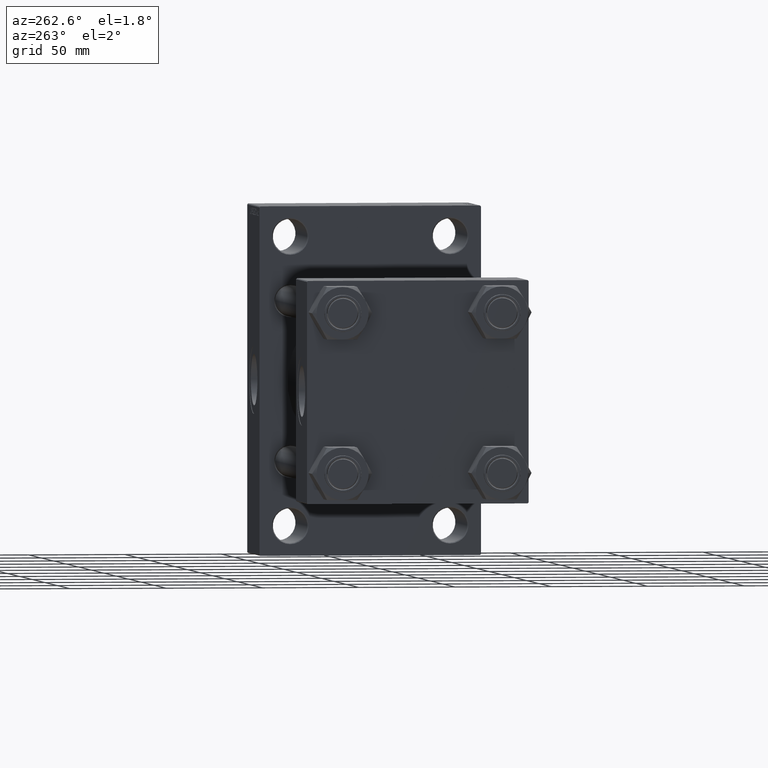
[diagram: clean part render]
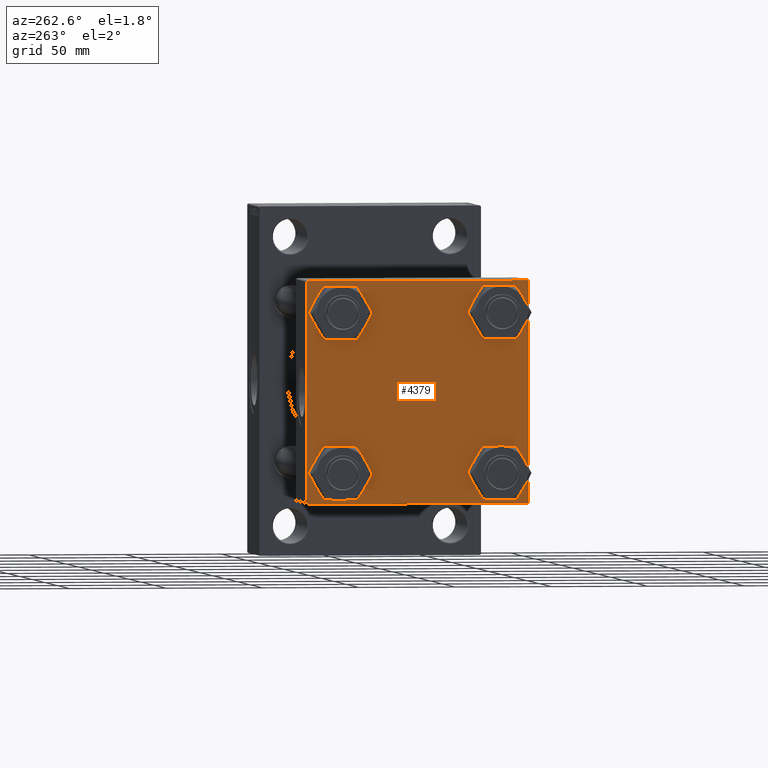
[diagram: same view with one face highlighted and labeled with its STEP entity id]
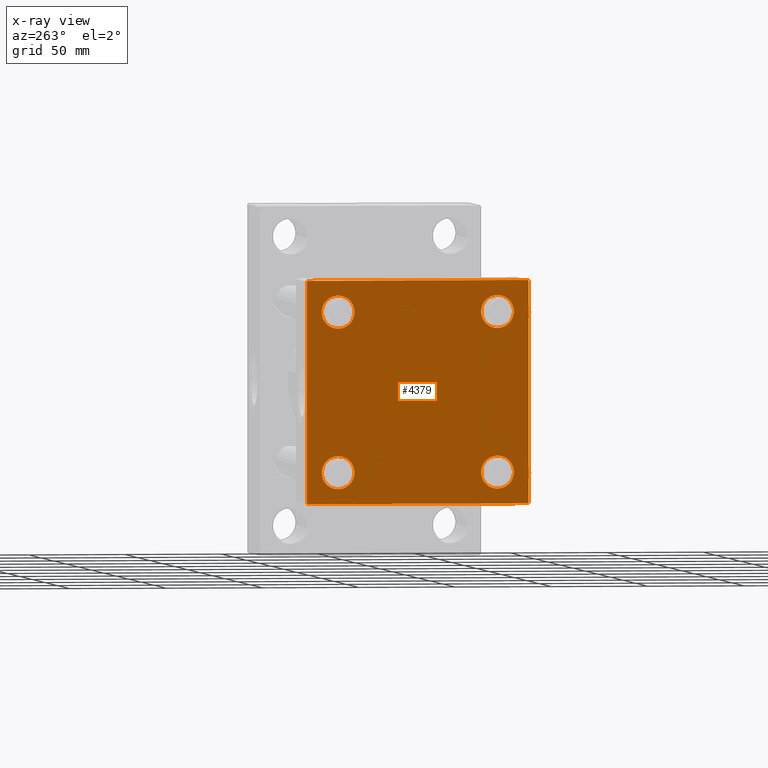
[diagram: x-ray of the same camera — body ghosted, the highlighted face saturated]
A machine part, auxiliary view. The second image highlights one B-rep face of the part: STEP entity #4379.
The next image is the same camera in x-ray: the body ghosted, the highlighted face saturated — about 0% of this face is hidden behind the body in this view.
In plain terms, the highlighted planar face has unit normal (-1, 0, 0).
Its self-contained STEP definition (entity closure, byte-faithful):
#698 = CARTESIAN_POINT ( 'NONE',  ( 0.000000000000000000, -57.00000000000000711, -57.50000000000000711 ) ) ;
#809 = DIRECTION ( 'NONE',  ( 1.000000000000000000, -0.000000000000000000, 0.000000000000000000 ) ) ;
#1792 = CIRCLE ( 'NONE', #28853, 8.499999999999992895 ) ;
#1999 = DIRECTION ( 'NONE',  ( 0.000000000000000000, -1.000000000000000000, -1.206764157201257045E-16 ) ) ;
#2566 = CARTESIAN_POINT ( 'NONE',  ( 0.000000000000000000, -41.34999999999998721, 32.85000000000001563 ) ) ;
#2760 = DIRECTION ( 'NONE',  ( 0.000000000000000000, -0.7071067811865474617, 0.7071067811865474617 ) ) ;
#3002 = DIRECTION ( 'NONE',  ( 0.000000000000000000, 0.000000000000000000, 1.000000000000000000 ) ) ;
#3079 = ORIENTED_EDGE ( 'NONE', *, *, #10534, .F. ) ;
#4379 = ADVANCED_FACE ( 'NONE', ( #24170, #32154, #17629, #13285, #6013 ), #21005, .T. ) ;
#4962 = DIRECTION ( 'NONE',  ( 0.000000000000000000, 0.000000000000000000, 1.000000000000000000 ) ) ;
#5262 = VECTOR ( 'NONE', #19459, 1000.000000000000114 ) ;
#5321 = DIRECTION ( 'NONE',  ( 0.000000000000000000, 0.7071067811865573427, -0.7071067811865376918 ) ) ;
#5323 = DIRECTION ( 'NONE',  ( 1.000000000000000000, -0.000000000000000000, 0.000000000000000000 ) ) ;
#5614 = CARTESIAN_POINT ( 'NONE',  ( 0.000000000000000000, 41.34999999999999432, 41.35000000000000142 ) ) ;
#6013 = FACE_OUTER_BOUND ( 'NONE', #12167, .T. ) ;
#6290 = VERTEX_POINT ( 'NONE', #10381 ) ;
#6509 = VERTEX_POINT ( 'NONE', #2566 ) ;
#6924 = AXIS2_PLACEMENT_3D ( 'NONE', #23591, #11990, #4962 ) ;
#7535 = DIRECTION ( 'NONE',  ( 0.000000000000000000, 0.000000000000000000, 1.000000000000000000 ) ) ;
#7640 = CARTESIAN_POINT ( 'NONE',  ( 0.000000000000000000, 57.00000000000002132, -57.49999999999999289 ) ) ;
#7899 = VERTEX_POINT ( 'NONE', #18154 ) ;
#8041 = EDGE_CURVE ( 'NONE', #8107, #39090, #33808, .T. ) ;
#8107 = VERTEX_POINT ( 'NONE', #8456 ) ;
#8353 = VECTOR ( 'NONE', #2760, 1000.000000000000114 ) ;
#8456 = CARTESIAN_POINT ( 'NONE',  ( 0.000000000000000000, -41.34999999999998721, -32.85000000000001563 ) ) ;
#9239 = VERTEX_POINT ( 'NONE', #27262 ) ;
#9963 = DIRECTION ( 'NONE',  ( 0.000000000000000000, 0.000000000000000000, 1.000000000000000000 ) ) ;
#10092 = CIRCLE ( 'NONE', #37173, 8.499999999999992895 ) ;
#10381 = CARTESIAN_POINT ( 'NONE',  ( 0.000000000000000000, 41.34999999999999432, 32.85000000000000853 ) ) ;
#10396 = VERTEX_POINT ( 'NONE', #35676 ) ;
#10534 = EDGE_CURVE ( 'NONE', #17412, #44735, #33462, .T. ) ;
#11155 = VERTEX_POINT ( 'NONE', #43240 ) ;
#11990 = DIRECTION ( 'NONE',  ( 1.000000000000000000, -0.000000000000000000, 0.000000000000000000 ) ) ;
#12167 = EDGE_LOOP ( 'NONE', ( #44792, #36534, #32993, #22097, #3079, #38089, #20717, #39710 ) ) ;
#12438 = DIRECTION ( 'NONE',  ( 0.000000000000000000, 0.000000000000000000, 1.000000000000000000 ) ) ;
#12533 = CARTESIAN_POINT ( 'NONE',  ( 0.000000000000000000, -57.50000000000000711, -57.00000000000000711 ) ) ;
#13021 = LINE ( 'NONE', #42568, #27019 ) ;
#13049 = CARTESIAN_POINT ( 'NONE',  ( 0.000000000000000000, 0.000000000000000000, 0.000000000000000000 ) ) ;
#13169 = EDGE_CURVE ( 'NONE', #17412, #16079, #34346, .T. ) ;
#13199 = CARTESIAN_POINT ( 'NONE',  ( 0.000000000000000000, -57.00000000000003553, 57.49999999999999289 ) ) ;
#13285 = FACE_BOUND ( 'NONE', #34984, .T. ) ;
#13762 = DIRECTION ( 'NONE',  ( -0.000000000000000000, 0.000000000000000000, 1.000000000000000000 ) ) ;
#13868 = CARTESIAN_POINT ( 'NONE',  ( 0.000000000000000000, 57.49999999999999289, -57.49999999999999289 ) ) ;
#13978 = ORIENTED_EDGE ( 'NONE', *, *, #31604, .T. ) ;
#14209 = VERTEX_POINT ( 'NONE', #698 ) ;
#14360 = CARTESIAN_POINT ( 'NONE',  ( 0.000000000000000000, -57.50000000000000711, 57.49999999999999289 ) ) ;
#15242 = DIRECTION ( 'NONE',  ( 0.000000000000000000, 0.000000000000000000, 1.000000000000000000 ) ) ;
#15334 = EDGE_LOOP ( 'NONE', ( #24791, #36113 ) ) ;
#15486 = DIRECTION ( 'NONE',  ( 1.000000000000000000, -0.000000000000000000, 0.000000000000000000 ) ) ;
#15541 = AXIS2_PLACEMENT_3D ( 'NONE', #37152, #32788, #3002 ) ;
#16079 = VERTEX_POINT ( 'NONE', #13199 ) ;
#16105 = EDGE_CURVE ( 'NONE', #6509, #9239, #23255, .T. ) ;
#17082 = AXIS2_PLACEMENT_3D ( 'NONE', #37085, #40949, #7535 ) ;
#17187 = VECTOR ( 'NONE', #1999, 1000.000000000000000 ) ;
#17412 = VERTEX_POINT ( 'NONE', #46210 ) ;
#17629 = FACE_BOUND ( 'NONE', #27612, .T. ) ;
#18154 = CARTESIAN_POINT ( 'NONE',  ( 0.000000000000000000, 41.34999999999999432, -32.85000000000000853 ) ) ;
#18397 = AXIS2_PLACEMENT_3D ( 'NONE', #19682, #809, #12438 ) ;
#19090 = CARTESIAN_POINT ( 'NONE',  ( -0.000000000000000000, -57.25000000000081712, 57.24999999999922551 ) ) ;
#19459 = DIRECTION ( 'NONE',  ( -0.000000000000000000, -0.7071067811865376918, -0.7071067811865573427 ) ) ;
#19682 = CARTESIAN_POINT ( 'NONE',  ( 0.000000000000000000, -41.34999999999998721, -41.35000000000000853 ) ) ;
#19693 = LINE ( 'NONE', #30598, #5262 ) ;
#20043 = VERTEX_POINT ( 'NONE', #7640 ) ;
#20527 = CARTESIAN_POINT ( 'NONE',  ( 0.000000000000000000, -41.34999999999998721, -49.85000000000000853 ) ) ;
#20717 = ORIENTED_EDGE ( 'NONE', *, *, #25834, .F. ) ;
#20803 = CARTESIAN_POINT ( 'NONE',  ( 0.000000000000000000, 57.49999999999999289, 57.50000000000000711 ) ) ;
#21005 = PLANE ( 'NONE',  #43893 ) ;
#21032 = ORIENTED_EDGE ( 'NONE', *, *, #27724, .T. ) ;
#21269 = EDGE_CURVE ( 'NONE', #14209, #44735, #25983, .T. ) ;
#21447 = EDGE_CURVE ( 'NONE', #39090, #8107, #26084, .T. ) ;
#21621 = CARTESIAN_POINT ( 'NONE',  ( 0.000000000000000000, 57.49999999999999289, -57.00000000000000711 ) ) ;
#22008 = CARTESIAN_POINT ( 'NONE',  ( 0.000000000000000000, -41.34999999999998721, -41.35000000000000853 ) ) ;
#22097 = ORIENTED_EDGE ( 'NONE', *, *, #21269, .T. ) ;
#22306 = EDGE_CURVE ( 'NONE', #30300, #20043, #19693, .T. ) ;
#22494 = EDGE_LOOP ( 'NONE', ( #42822, #42563 ) ) ;
#22521 = ORIENTED_EDGE ( 'NONE', *, *, #28533, .T. ) ;
#23255 = CIRCLE ( 'NONE', #15541, 8.499999999999992895 ) ;
#23328 = LINE ( 'NONE', #38121, #38563 ) ;
#23472 = CARTESIAN_POINT ( 'NONE',  ( 0.000000000000000000, -41.34999999999998721, 41.35000000000000853 ) ) ;
#23591 = CARTESIAN_POINT ( 'NONE',  ( 0.000000000000000000, 41.34999999999999432, 41.35000000000000142 ) ) ;
#23666 = EDGE_CURVE ( 'NONE', #41886, #10396, #23328, .T. ) ;
#24170 = FACE_BOUND ( 'NONE', #15334, .T. ) ;
#24671 = AXIS2_PLACEMENT_3D ( 'NONE', #5614, #43857, #9963 ) ;
#24791 = ORIENTED_EDGE ( 'NONE', *, *, #30815, .T. ) ;
#25570 = LINE ( 'NONE', #20803, #32762 ) ;
#25834 = EDGE_CURVE ( 'NONE', #41886, #16079, #13021, .T. ) ;
#25983 = LINE ( 'NONE', #29390, #8353 ) ;
#26084 = CIRCLE ( 'NONE', #18397, 8.499999999999992895 ) ;
#27019 = VECTOR ( 'NONE', #43032, 1000.000000000000000 ) ;
#27262 = CARTESIAN_POINT ( 'NONE',  ( 0.000000000000000000, -41.34999999999998721, 49.85000000000000853 ) ) ;
#27581 = DIRECTION ( 'NONE',  ( 0.000000000000000000, 0.000000000000000000, 1.000000000000000000 ) ) ;
#27612 = EDGE_LOOP ( 'NONE', ( #34632, #13978 ) ) ;
#27724 = EDGE_CURVE ( 'NONE', #6290, #34976, #45574, .T. ) ;
#28533 = EDGE_CURVE ( 'NONE', #34976, #6290, #30901, .T. ) ;
#28853 = AXIS2_PLACEMENT_3D ( 'NONE', #45811, #31918, #39431 ) ;
#29390 = CARTESIAN_POINT ( 'NONE',  ( 0.000000000000000000, -57.25000000000000711, -57.25000000000000711 ) ) ;
#30161 = CARTESIAN_POINT ( 'NONE',  ( 0.000000000000000000, 57.00000000000000711, 57.50000000000000711 ) ) ;
#30300 = VERTEX_POINT ( 'NONE', #21621 ) ;
#30598 = CARTESIAN_POINT ( 'NONE',  ( 0.000000000000000000, 57.25000000000081712, -57.24999999999922551 ) ) ;
#30815 = EDGE_CURVE ( 'NONE', #9239, #6509, #10092, .T. ) ;
#30901 = CIRCLE ( 'NONE', #6924, 8.499999999999992895 ) ;
#31604 = EDGE_CURVE ( 'NONE', #11155, #7899, #39519, .T. ) ;
#31918 = DIRECTION ( 'NONE',  ( 1.000000000000000000, -0.000000000000000000, 0.000000000000000000 ) ) ;
#32154 = FACE_BOUND ( 'NONE', #22494, .T. ) ;
#32257 = LINE ( 'NONE', #13868, #17187 ) ;
#32611 = DIRECTION ( 'NONE',  ( 0.000000000000000000, 0.000000000000000000, -1.000000000000000000 ) ) ;
#32762 = VECTOR ( 'NONE', #32611, 1000.000000000000000 ) ;
#32788 = DIRECTION ( 'NONE',  ( 1.000000000000000000, -0.000000000000000000, 0.000000000000000000 ) ) ;
#32993 = ORIENTED_EDGE ( 'NONE', *, *, #35065, .T. ) ;
#33462 = LINE ( 'NONE', #14360, #38567 ) ;
#33808 = CIRCLE ( 'NONE', #36146, 8.499999999999992895 ) ;
#34346 = LINE ( 'NONE', #19090, #37874 ) ;
#34632 = ORIENTED_EDGE ( 'NONE', *, *, #37394, .T. ) ;
#34976 = VERTEX_POINT ( 'NONE', #40299 ) ;
#34984 = EDGE_LOOP ( 'NONE', ( #22521, #21032 ) ) ;
#35065 = EDGE_CURVE ( 'NONE', #20043, #14209, #32257, .T. ) ;
#35676 = CARTESIAN_POINT ( 'NONE',  ( 0.000000000000000000, 57.49999999999999289, 57.00000000000003553 ) ) ;
#36113 = ORIENTED_EDGE ( 'NONE', *, *, #16105, .T. ) ;
#36146 = AXIS2_PLACEMENT_3D ( 'NONE', #22008, #15486, #15242 ) ;
#36534 = ORIENTED_EDGE ( 'NONE', *, *, #22306, .T. ) ;
#37085 = CARTESIAN_POINT ( 'NONE',  ( 0.000000000000000000, 41.34999999999999432, -41.35000000000000142 ) ) ;
#37152 = CARTESIAN_POINT ( 'NONE',  ( 0.000000000000000000, -41.34999999999998721, 41.35000000000000853 ) ) ;
#37173 = AXIS2_PLACEMENT_3D ( 'NONE', #23472, #5323, #27581 ) ;
#37394 = EDGE_CURVE ( 'NONE', #7899, #11155, #1792, .T. ) ;
#37874 = VECTOR ( 'NONE', #41853, 1000.000000000000114 ) ;
#38089 = ORIENTED_EDGE ( 'NONE', *, *, #13169, .T. ) ;
#38121 = CARTESIAN_POINT ( 'NONE',  ( 0.000000000000000000, 57.24999999999922551, 57.25000000000081712 ) ) ;
#38563 = VECTOR ( 'NONE', #5321, 1000.000000000000114 ) ;
#38567 = VECTOR ( 'NONE', #40018, 1000.000000000000000 ) ;
#39090 = VERTEX_POINT ( 'NONE', #20527 ) ;
#39431 = DIRECTION ( 'NONE',  ( 0.000000000000000000, 0.000000000000000000, 1.000000000000000000 ) ) ;
#39519 = CIRCLE ( 'NONE', #17082, 8.499999999999992895 ) ;
#39710 = ORIENTED_EDGE ( 'NONE', *, *, #23666, .T. ) ;
#40018 = DIRECTION ( 'NONE',  ( 0.000000000000000000, 0.000000000000000000, -1.000000000000000000 ) ) ;
#40299 = CARTESIAN_POINT ( 'NONE',  ( 0.000000000000000000, 41.34999999999999432, 49.85000000000000142 ) ) ;
#40949 = DIRECTION ( 'NONE',  ( 1.000000000000000000, -0.000000000000000000, 0.000000000000000000 ) ) ;
#41853 = DIRECTION ( 'NONE',  ( -0.000000000000000000, 0.7071067811865376918, 0.7071067811865573427 ) ) ;
#41886 = VERTEX_POINT ( 'NONE', #30161 ) ;
#42563 = ORIENTED_EDGE ( 'NONE', *, *, #21447, .T. ) ;
#42568 = CARTESIAN_POINT ( 'NONE',  ( 0.000000000000000000, 57.49999999999999289, 57.50000000000000711 ) ) ;
#42591 = DIRECTION ( 'NONE',  ( -1.000000000000000000, 0.000000000000000000, -0.000000000000000000 ) ) ;
#42822 = ORIENTED_EDGE ( 'NONE', *, *, #8041, .T. ) ;
#43032 = DIRECTION ( 'NONE',  ( 0.000000000000000000, -1.000000000000000000, -1.206764157201257045E-16 ) ) ;
#43240 = CARTESIAN_POINT ( 'NONE',  ( 0.000000000000000000, 41.34999999999999432, -49.85000000000000142 ) ) ;
#43857 = DIRECTION ( 'NONE',  ( 1.000000000000000000, -0.000000000000000000, 0.000000000000000000 ) ) ;
#43893 = AXIS2_PLACEMENT_3D ( 'NONE', #13049, #42591, #13762 ) ;
#44735 = VERTEX_POINT ( 'NONE', #12533 ) ;
#44792 = ORIENTED_EDGE ( 'NONE', *, *, #47510, .T. ) ;
#45574 = CIRCLE ( 'NONE', #24671, 8.499999999999992895 ) ;
#45811 = CARTESIAN_POINT ( 'NONE',  ( 0.000000000000000000, 41.34999999999999432, -41.35000000000000142 ) ) ;
#46210 = CARTESIAN_POINT ( 'NONE',  ( 0.000000000000000000, -57.50000000000000711, 57.00000000000000711 ) ) ;
#47510 = EDGE_CURVE ( 'NONE', #10396, #30300, #25570, .T. ) ;